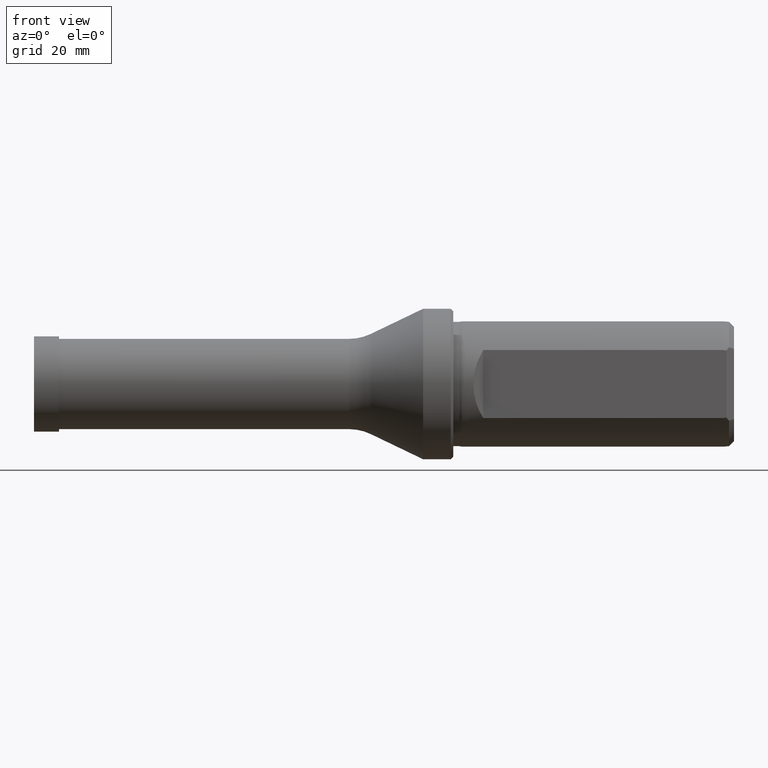
[diagram: clean part render]
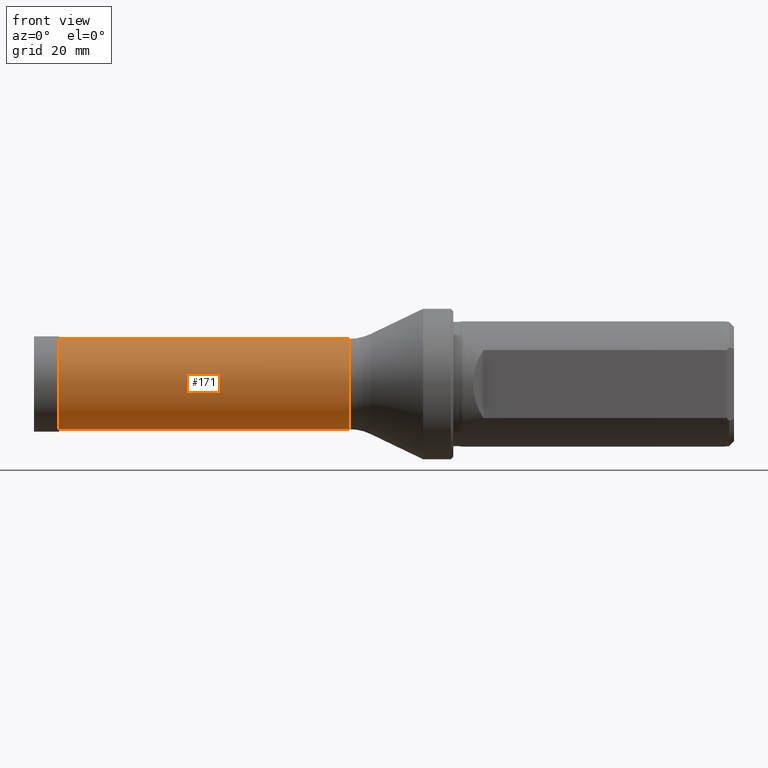
[diagram: same view with one face highlighted and labeled with its STEP entity id]
A machine part, front view. The second image highlights one B-rep face of the part: STEP entity #171.
In plain terms, the highlighted cylindrical surface (partial cylindrical patch) has radius 9 mm, axis along (-1, -0, -0).
Its self-contained STEP definition (entity closure, byte-faithful):
#26 = AXIS2_PLACEMENT_3D ( 'NONE', #28, #272, #437 ) ;
#28 = CARTESIAN_POINT ( 'NONE',  ( 4.500000000000000000, 0.0000000000000000000, 0.0000000000000000000 ) ) ;
#40 = CARTESIAN_POINT ( 'NONE',  ( 0.0000000000000000000, 0.0000000000000000000, 9.000000000000000000 ) ) ;
#56 = CYLINDRICAL_SURFACE ( 'NONE', #1092, 9.000000000000000000 ) ;
#167 = DIRECTION ( 'NONE',  ( -1.000000000000000000, -0.0000000000000000000, -0.0000000000000000000 ) ) ;
#171 = ADVANCED_FACE ( 'NONE', ( #682 ), #56, .T. ) ;
#182 = CARTESIAN_POINT ( 'NONE',  ( 0.0000000000000000000, 1.102182119232617700E-015, -9.000000000000000000 ) ) ;
#186 = LINE ( 'NONE', #40, #339 ) ;
#232 = CIRCLE ( 'NONE', #400, 9.000000000000000000 ) ;
#234 = DIRECTION ( 'NONE',  ( -1.000000000000000000, -0.0000000000000000000, -0.0000000000000000000 ) ) ;
#259 = LINE ( 'NONE', #182, #273 ) ;
#272 = DIRECTION ( 'NONE',  ( -1.000000000000000000, 0.0000000000000000000, 0.0000000000000000000 ) ) ;
#273 = VECTOR ( 'NONE', #1134, 1000.000000000000000 ) ;
#295 = EDGE_CURVE ( 'NONE', #1187, #1047, #186, .T. ) ;
#339 = VECTOR ( 'NONE', #234, 1000.000000000000000 ) ;
#371 = EDGE_CURVE ( 'NONE', #723, #1187, #232, .T. ) ;
#386 = EDGE_CURVE ( 'NONE', #1066, #1047, #643, .T. ) ;
#400 = AXIS2_PLACEMENT_3D ( 'NONE', #607, #167, #584 ) ;
#437 = DIRECTION ( 'NONE',  ( 0.0000000000000000000, 0.0000000000000000000, 1.000000000000000000 ) ) ;
#474 = CARTESIAN_POINT ( 'NONE',  ( 62.32800000000001000, 0.0000000000000000000, 9.000000000000000000 ) ) ;
#477 = CARTESIAN_POINT ( 'NONE',  ( 4.500000000000000000, 0.0000000000000000000, 9.000000000000000000 ) ) ;
#520 = EDGE_LOOP ( 'NONE', ( #753, #768, #819, #805 ) ) ;
#584 = DIRECTION ( 'NONE',  ( 0.0000000000000000000, 0.0000000000000000000, 1.000000000000000000 ) ) ;
#607 = CARTESIAN_POINT ( 'NONE',  ( 62.32800000000001000, 0.0000000000000000000, 0.0000000000000000000 ) ) ;
#634 = DIRECTION ( 'NONE',  ( 0.0000000000000000000, 0.0000000000000000000, 1.000000000000000000 ) ) ;
#643 = CIRCLE ( 'NONE', #26, 9.000000000000000000 ) ;
#677 = CARTESIAN_POINT ( 'NONE',  ( 62.32800000000001000, 1.102182119232617700E-015, -9.000000000000000000 ) ) ;
#682 = FACE_OUTER_BOUND ( 'NONE', #520, .T. ) ;
#723 = VERTEX_POINT ( 'NONE', #677 ) ;
#753 = ORIENTED_EDGE ( 'NONE', *, *, #1210, .F. ) ;
#768 = ORIENTED_EDGE ( 'NONE', *, *, #371, .T. ) ;
#805 = ORIENTED_EDGE ( 'NONE', *, *, #386, .F. ) ;
#819 = ORIENTED_EDGE ( 'NONE', *, *, #295, .T. ) ;
#876 = CARTESIAN_POINT ( 'NONE',  ( 4.500000000000000000, 1.102182119232617700E-015, -9.000000000000000000 ) ) ;
#882 = DIRECTION ( 'NONE',  ( -1.000000000000000000, -0.0000000000000000000, -0.0000000000000000000 ) ) ;
#1015 = CARTESIAN_POINT ( 'NONE',  ( 0.0000000000000000000, 0.0000000000000000000, 0.0000000000000000000 ) ) ;
#1047 = VERTEX_POINT ( 'NONE', #477 ) ;
#1066 = VERTEX_POINT ( 'NONE', #876 ) ;
#1092 = AXIS2_PLACEMENT_3D ( 'NONE', #1015, #882, #634 ) ;
#1134 = DIRECTION ( 'NONE',  ( -1.000000000000000000, -0.0000000000000000000, -0.0000000000000000000 ) ) ;
#1187 = VERTEX_POINT ( 'NONE', #474 ) ;
#1210 = EDGE_CURVE ( 'NONE', #723, #1066, #259, .T. ) ;